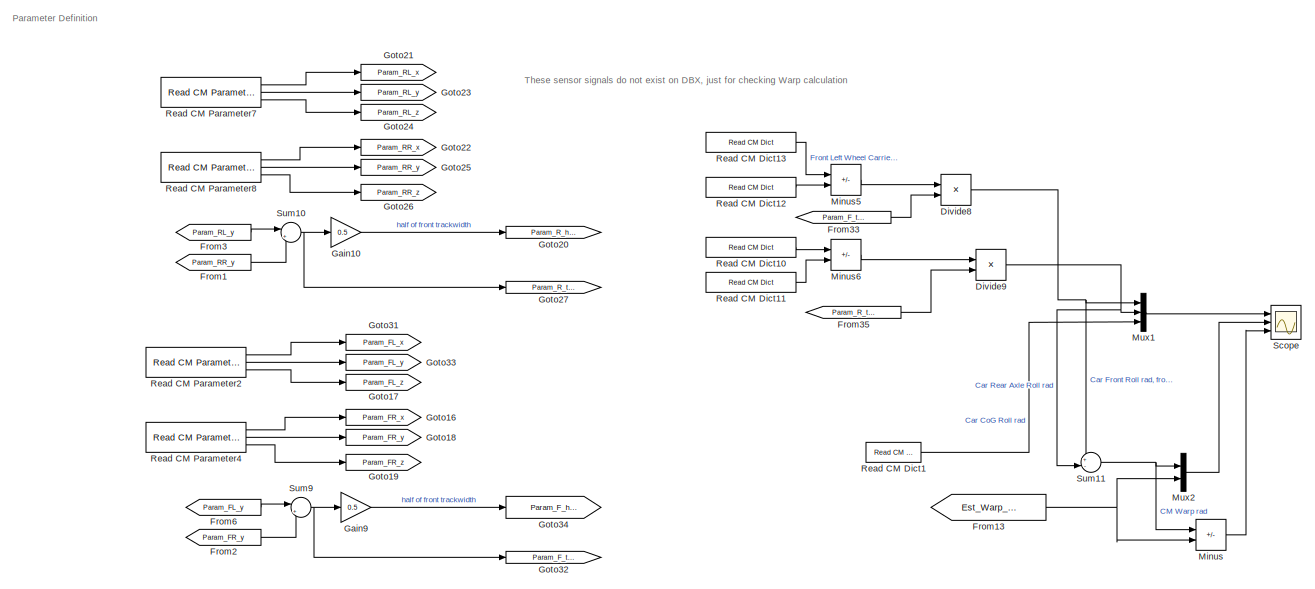
[diagram: root canvas - part 1/5, top left region]
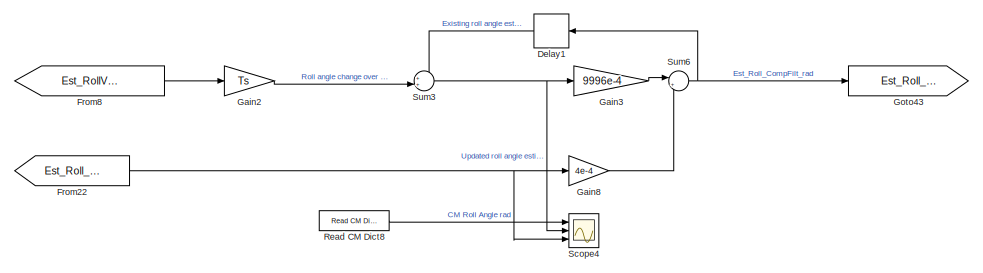
[diagram: root canvas - part 2/5, middle right region]
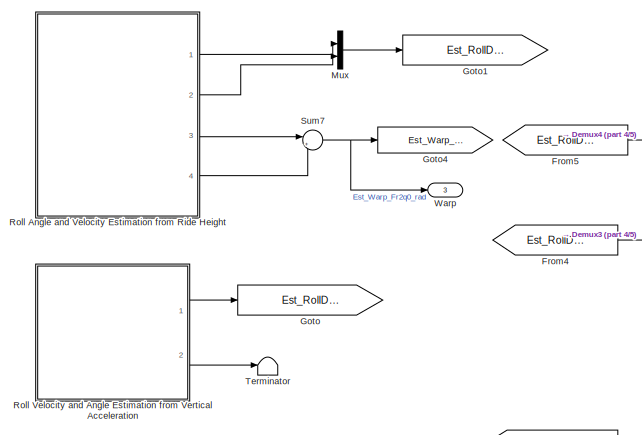
[diagram: root canvas - part 3/5, middle left region]
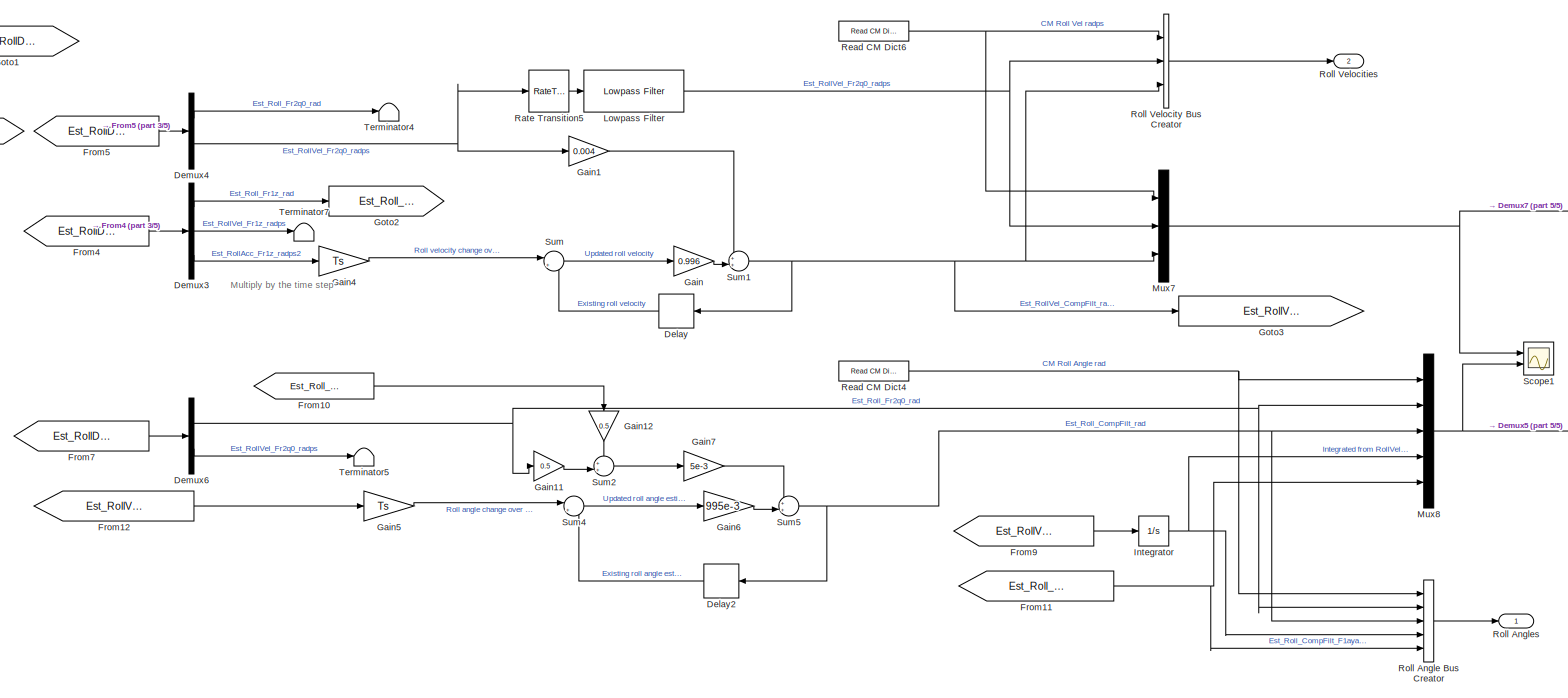
[diagram: root canvas - part 4/5, bottom center region]
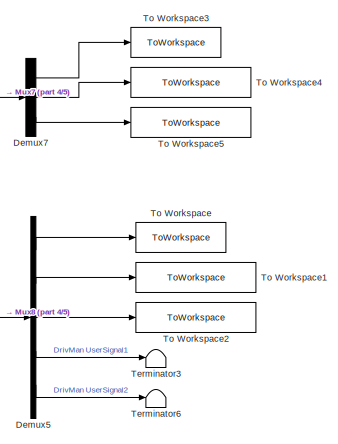
[diagram: root canvas - part 5/5, bottom right region]
MODEL slx_1d5358921027
KIND model
CONFIG AbsTol = auto
CONFIG EnableMultiTasking = on
CONFIG FixedStep = auto
CONFIG MaxStep = auto
CONFIG MinStep = auto
CONFIG RelTol = 1e-3
CONFIG SampleTimeConstraint = Unconstrained
CONFIG SolverName = FixedStepAuto
CONFIG StartTime = 0.0
CONFIG StopTime = 10.0
BLOCK [Delay] Delay
  DelayLength = 1
  InputPortMap = u0
  NameLocation = top
  Ports = [1, 1]
BLOCK [Delay] Delay1
  DelayLength = 1
  InputPortMap = u0
  NameLocation = top
  Ports = [1, 1]
BLOCK [Delay] Delay2
  DelayLength = 1
  InputPortMap = u0
  NameLocation = top
  Ports = [1, 1]
BLOCK [Demux] Demux3
  DisplayOption = none
  Outputs = 3
  Ports = [1, 3]
BLOCK [Demux] Demux4
  DisplayOption = none
  Outputs = 2
  Ports = [1, 2]
BLOCK [Demux] Demux5
  DisplayOption = none
  Outputs = 5
  Ports = [1, 5]
BLOCK [Demux] Demux6
  DisplayOption = none
  Outputs = 2
  Ports = [1, 2]
BLOCK [Demux] Demux7
  Outputs = 3
  Ports = [1, 3]
BLOCK [Product] Divide8
  Inputs = */
  Ports = [2, 1]
BLOCK [Product] Divide9
  Inputs = */
  Ports = [2, 1]
BLOCK [From] From1
  GotoTag = Param_RR_y
BLOCK [From] From10
  GotoTag = Est_Roll_Fr1ayaz_rad
BLOCK [From] From11
  GotoTag = Est_Roll_CompFilt_rad
BLOCK [From] From12
  GotoTag = Est_RollVel_CompFilt_radps
BLOCK [From] From13
  GotoTag = Est_Warp_Fr2q0_rad
BLOCK [From] From2
  GotoTag = Param_FR_y
BLOCK [From] From22
  GotoTag = Est_Roll_Fr1ayaz_rad
BLOCK [From] From3
  GotoTag = Param_RL_y
BLOCK [From] From33
  GotoTag = Param_F_track
BLOCK [From] From35
  GotoTag = Param_R_track
BLOCK [From] From4
  GotoTag = Est_RollDynamics_Fr1z
BLOCK [From] From5
  GotoTag = Est_RollDynamics_Fr2q0
BLOCK [From] From6
  GotoTag = Param_FL_y
BLOCK [From] From7
  GotoTag = Est_RollDynamics_Fr2q0
BLOCK [From] From8
  GotoTag = Est_RollVel_CompFilt_radps
BLOCK [From] From9
  GotoTag = Est_RollVel_CompFilt_radps
BLOCK [Gain] Gain
  Gain = 0.996
BLOCK [Gain] Gain1
  Gain = 0.004
BLOCK [Gain] Gain10
  Gain = 0.5
BLOCK [Gain] Gain11
  Gain = 0.5
BLOCK [Gain] Gain12
  Gain = 0.5
  NameLocation = left
BLOCK [Gain] Gain2
  Gain = Ts
BLOCK [Gain] Gain3
  Gain = 9996e-4
BLOCK [Gain] Gain4
  Gain = Ts
BLOCK [Gain] Gain5
  Gain = Ts
BLOCK [Gain] Gain6
  Gain = 995e-3
BLOCK [Gain] Gain7
  Gain = 5e-3
BLOCK [Gain] Gain8
  Gain = 4e-4
BLOCK [Gain] Gain9
  Gain = 0.5
BLOCK [Goto] Goto
  GotoTag = Est_RollDynamics_Fr1z
BLOCK [Goto] Goto1
  GotoTag = Est_RollDynamics_Fr2q0
BLOCK [Goto] Goto16
  GotoTag = Param_FR_x
BLOCK [Goto] Goto17
  GotoTag = Param_FL_z
BLOCK [Goto] Goto18
  GotoTag = Param_FR_y
BLOCK [Goto] Goto19
  GotoTag = Param_FR_z
BLOCK [Goto] Goto2
  GotoTag = Est_Roll_Fr1ayaz_rad
BLOCK [Goto] Goto20
  GotoTag = Param_R_halftrack
BLOCK [Goto] Goto21
  GotoTag = Param_RL_x
BLOCK [Goto] Goto22
  GotoTag = Param_RR_x
BLOCK [Goto] Goto23
  GotoTag = Param_RL_y
BLOCK [Goto] Goto24
  GotoTag = Param_RL_z
BLOCK [Goto] Goto25
  GotoTag = Param_RR_y
BLOCK [Goto] Goto26
  GotoTag = Param_RR_z
BLOCK [Goto] Goto27
  GotoTag = Param_R_track
BLOCK [Goto] Goto3
  GotoTag = Est_RollVel_CompFilt_radps
BLOCK [Goto] Goto31
  GotoTag = Param_FL_x
BLOCK [Goto] Goto32
  GotoTag = Param_F_track
BLOCK [Goto] Goto33
  GotoTag = Param_FL_y
BLOCK [Goto] Goto34
  GotoTag = Param_F_halftrack
BLOCK [Goto] Goto4
  GotoTag = Est_Warp_Fr2q0_rad
BLOCK [Goto] Goto43
  GotoTag = Est_Roll_CompFilt_rad
BLOCK [Integrator] Integrator
  Ports = [1, 1]
BLOCK [Reference] Lowpass Filter  REF=dspfdesign/Lowpass Filter
  Ports = [1, 1]
  SourceBlock = dspfdesign/Lowpass Filter
  SourceProductBaseCode = DS
  SourceType = dsp.LowpassFilter
BLOCK [Sum] Minus
  IconShape = rectangular
  Inputs = +-
  Ports = [2, 1]
BLOCK [Sum] Minus5
  IconShape = rectangular
  Inputs = -+
  Ports = [2, 1]
BLOCK [Sum] Minus6
  IconShape = rectangular
  Inputs = -+
  Ports = [2, 1]
BLOCK [Mux] Mux
  DisplayOption = bar
  Inputs = 2
  Ports = [2, 1]
BLOCK [Mux] Mux1
  DisplayOption = bar
  Inputs = 3
  Ports = [3, 1]
BLOCK [Mux] Mux2
  DisplayOption = bar
  Inputs = 2
  Ports = [2, 1]
BLOCK [Mux] Mux7
  DisplayOption = bar
  Inputs = 3
  Ports = [3, 1]
BLOCK [Mux] Mux8
  DisplayOption = bar
  Inputs = 5
  Ports = [5, 1]
BLOCK [RateTransition] Rate Transition5
BLOCK [Reference] Read CM Dict1  REF=CarMaker4SL/Read CM Dict
  Ports = [0, 1]
  SourceBlock = CarMaker4SL/Read CM Dict
  SourceProductName = CarMaker4SL
  SourceType = Read CarMaker Dictionary Variable(s)
BLOCK [Reference] Read CM Dict10  REF=CarMaker4SL/Read CM Dict
  Ports = [0, 1]
  SourceBlock = CarMaker4SL/Read CM Dict
  SourceProductName = CarMaker4SL
  SourceType = Read CarMaker Dictionary Variable(s)
BLOCK [Reference] Read CM Dict11  REF=CarMaker4SL/Read CM Dict
  Ports = [0, 1]
  SourceBlock = CarMaker4SL/Read CM Dict
  SourceProductName = CarMaker4SL
  SourceType = Read CarMaker Dictionary Variable(s)
BLOCK [Reference] Read CM Dict12  REF=CarMaker4SL/Read CM Dict
  Ports = [0, 1]
  SourceBlock = CarMaker4SL/Read CM Dict
  SourceProductName = CarMaker4SL
  SourceType = Read CarMaker Dictionary Variable(s)
BLOCK [Reference] Read CM Dict13  REF=CarMaker4SL/Read CM Dict
  Ports = [0, 1]
  SourceBlock = CarMaker4SL/Read CM Dict
  SourceProductName = CarMaker4SL
  SourceType = Read CarMaker Dictionary Variable(s)
BLOCK [Reference] Read CM Dict4  REF=CarMaker4SL/Read CM Dict
  Ports = [0, 1]
  SourceBlock = CarMaker4SL/Read CM Dict
  SourceProductName = CarMaker4SL
  SourceType = Read CarMaker Dictionary Variable(s)
BLOCK [Reference] Read CM Dict6  REF=CarMaker4SL/Read CM Dict
  Ports = [0, 1]
  SourceBlock = CarMaker4SL/Read CM Dict
  SourceProductName = CarMaker4SL
  SourceType = Read CarMaker Dictionary Variable(s)
BLOCK [Reference] Read CM Dict8  REF=CarMaker4SL/Read CM Dict
  Ports = [0, 1]
  SourceBlock = CarMaker4SL/Read CM Dict
  SourceProductName = CarMaker4SL
  SourceType = Read CarMaker Dictionary Variable(s)
BLOCK [Reference] Read CM Parameter2  REF=CarMaker4SL/Read CM Parameter
  Ports = [0, 3]
  SourceBlock = CarMaker4SL/Read CM Parameter
  SourceProductName = CarMaker4SL
  SourceType = Read CarMaker Infofile Parameter
BLOCK [Reference] Read CM Parameter4  REF=CarMaker4SL/Read CM Parameter
  Ports = [0, 3]
  SourceBlock = CarMaker4SL/Read CM Parameter
  SourceProductName = CarMaker4SL
  SourceType = Read CarMaker Infofile Parameter
BLOCK [Reference] Read CM Parameter7  REF=CarMaker4SL/Read CM Parameter
  Ports = [0, 3]
  SourceBlock = CarMaker4SL/Read CM Parameter
  SourceProductName = CarMaker4SL
  SourceType = Read CarMaker Infofile Parameter
BLOCK [Reference] Read CM Parameter8  REF=CarMaker4SL/Read CM Parameter
  Ports = [0, 3]
  SourceBlock = CarMaker4SL/Read CM Parameter
  SourceProductName = CarMaker4SL
  SourceType = Read CarMaker Infofile Parameter
BLOCK [BusCreator] Roll Angle Bus Creator
  DisplayOption = bar
  InheritFromInputs = on
  Inputs = 5
  OutDataTypeStr = Bus: Est_Roll_CF
  Ports = [5, 1]
BLOCK [ModelReference] Roll Angle and Velocity Estimation from Ride Height
  ModelNameDialog = s0501_rollest_rideheight.slx
  ModelReferenceVersion = 1.15
  Ports = [0, 4]
BLOCK [Outport] Roll Angles
  OutDataTypeStr = Bus: Est_Roll_CF
BLOCK [Outport] Roll Velocities
  OutDataTypeStr = Bus: Est_RollVel_CF
  Port = 2
BLOCK [BusCreator] Roll Velocity Bus Creator
  DisplayOption = bar
  InheritFromInputs = on
  Inputs = 3
  OutDataTypeStr = Bus: Est_RollVel_CF
  Ports = [3, 1]
BLOCK [ModelReference] Roll Velocity and Angle Estimation from Vertical Acceleration
  ModelNameDialog = s0502_rollest_vertacc.slx
  ModelReferenceVersion = 1.21
  Ports = [0, 2]
BLOCK [Scope] Scope
  Floating = off
  NumInputPorts = 3
  Ports = [3]
  ScopeSpecificationString = Simulink.scopes.TimeScopeBlockCfg('CurrentConfiguration', extmgr.ConfigurationSet(extmgr.Configuration('Core','General UI',true),extmgr.Configuration('Core','Source UI',true),extmgr.Configuration('Sources','WiredSimulink',true,'DataLoggingVariableName','ScopeData1'),extmgr.Configuration('Visuals','Time Domain',true,'SerializedDisplays',{struct('MinYLimReal','-0.00942','MaxYLimReal','0.08423','YLab...<+2922ch>
BLOCK [Scope] Scope1
  Commented = on
  Floating = off
  NumInputPorts = 2
  Ports = [2]
  ScopeSpecificationString = Simulink.scopes.TimeScopeBlockCfg('CurrentConfiguration', extmgr.ConfigurationSet(extmgr.Configuration('Core','General UI',true),extmgr.Configuration('Core','Source UI',true),extmgr.Configuration('Sources','WiredSimulink',true,'DataLoggingVariableName','ScopeData2'),extmgr.Configuration('Visuals','Time Domain',true,'SerializedDisplays',{struct('MinYLimReal','-0.11617','MaxYLimReal','0.26206','YLab...<+2181ch>
BLOCK [Scope] Scope4
  Floating = off
  NumInputPorts = 3
  Ports = [3]
  ScopeSpecificationString = Simulink.scopes.TimeScopeBlockCfg('CurrentConfiguration', extmgr.ConfigurationSet(extmgr.Configuration('Core','General UI',true),extmgr.Configuration('Core','Source UI',true),extmgr.Configuration('Sources','WiredSimulink',true,'DataLoggingVariableName','ScopeData2'),extmgr.Configuration('Visuals','Time Domain',true,'SerializedDisplays',{struct('MinYLimReal','-0.00941','MaxYLimReal','0.08306','YLab...<+1506ch>
BLOCK [Sum] Sum
  Inputs = |++
  Ports = [2, 1]
BLOCK [Sum] Sum1
  Inputs = ++|
  Ports = [2, 1]
BLOCK [Sum] Sum10
  Inputs = |+-
  Ports = [2, 1]
BLOCK [Sum] Sum11
  Inputs = +-|
  Ports = [2, 1]
BLOCK [Sum] Sum2
  Inputs = ++|
  Ports = [2, 1]
BLOCK [Sum] Sum3
  Inputs = ++|
  Ports = [2, 1]
BLOCK [Sum] Sum4
  Inputs = |++
  Ports = [2, 1]
BLOCK [Sum] Sum5
  Inputs = ++|
  Ports = [2, 1]
BLOCK [Sum] Sum6
  Inputs = |++
  Ports = [2, 1]
BLOCK [Sum] Sum7
  Inputs = |+-
  Ports = [2, 1]
BLOCK [Sum] Sum9
  Inputs = |+-
  Ports = [2, 1]
BLOCK [Terminator] Terminator
BLOCK [Terminator] Terminator3
  Commented = on
BLOCK [Terminator] Terminator4
BLOCK [Terminator] Terminator5
BLOCK [Terminator] Terminator6
  Commented = on
BLOCK [Terminator] Terminator7
  NameLocation = right
BLOCK [ToWorkspace] To Workspace
  Commented = on
  FixptAsFi = on
  MaxDataPoints = inf
  Ports = [1]
  SampleTime = -1
  VariableName = Car_Roll_rad
BLOCK [ToWorkspace] To Workspace1
  Commented = on
  FixptAsFi = on
  MaxDataPoints = inf
  Ports = [1]
  SampleTime = -1
  VariableName = Est_Roll_Fr2q0_rad
BLOCK [ToWorkspace] To Workspace2
  Commented = on
  FixptAsFi = on
  MaxDataPoints = inf
  Ports = [1]
  SampleTime = -1
  VariableName = Est_Roll_CompFilt_rad
BLOCK [ToWorkspace] To Workspace3
  Commented = on
  FixptAsFi = on
  MaxDataPoints = inf
  Ports = [1]
  SampleTime = -1
  VariableName = Car_RollVel_radps
BLOCK [ToWorkspace] To Workspace4
  Commented = on
  FixptAsFi = on
  MaxDataPoints = inf
  Ports = [1]
  SampleTime = -1
  VariableName = Est_RollVel_Fr2q0_radps
BLOCK [ToWorkspace] To Workspace5
  Commented = on
  FixptAsFi = on
  MaxDataPoints = inf
  Ports = [1]
  SampleTime = -1
  VariableName = Est_RollVel_CompFilt_radps
BLOCK [Outport] Warp
  Port = 3
ANNOTATION (root): Multiply by the time step
ANNOTATION (root): Parameter Definition
ANNOTATION (root): These sensor signals do not exist on DBX, just for checking Warp calculation
LINE Delay1:1 -> Sum3:1
LINE Delay2:1 -> Sum4:2
LINE Delay:1 -> Sum:2
LINE Demux3:1 -> Goto2:1
LINE Demux3:2 -> Terminator7:1
LINE Demux3:3 -> Gain4:1
LINE Demux4:1 -> Terminator4:1
NET Demux4:2 -> Gain1:1, Rate Transition5:1
LINE Demux5:1 -> To Workspace:1
LINE Demux5:2 -> To Workspace1:1
LINE Demux5:3 -> To Workspace2:1
LINE Demux5:4 -> Terminator3:1
LINE Demux5:5 -> Terminator6:1
NET Demux6:1 -> Gain11:1, Mux8:2, Roll Angle Bus Creator:2
LINE Demux6:2 -> Terminator5:1
LINE Demux7:1 -> To Workspace3:1
LINE Demux7:2 -> To Workspace4:1
LINE Demux7:3 -> To Workspace5:1
NET Divide8:1 -> Mux1:1, Sum11:1
NET Divide9:1 -> Mux1:2, Sum11:2
LINE From10:1 -> Gain12:1
NET From11:1 -> Mux8:5, Roll Angle Bus Creator:5
LINE From12:1 -> Gain5:1
NET From13:1 -> Minus:2, Mux2:2
LINE From1:1 -> Sum10:2
NET From22:1 -> Gain8:1, Scope4:3
LINE From2:1 -> Sum9:2
LINE From33:1 -> Divide8:2
LINE From35:1 -> Divide9:2
LINE From3:1 -> Sum10:1
LINE From4:1 -> Demux3:1
LINE From5:1 -> Demux4:1
LINE From6:1 -> Sum9:1
LINE From7:1 -> Demux6:1
LINE From8:1 -> Gain2:1
LINE From9:1 -> Integrator:1
LINE Gain10:1 -> Goto20:1
LINE Gain11:1 -> Sum2:2
LINE Gain12:1 -> Sum2:1
LINE Gain1:1 -> Sum1:1
LINE Gain2:1 -> Sum3:2
LINE Gain3:1 -> Sum6:1
LINE Gain4:1 -> Sum:1
LINE Gain5:1 -> Sum4:1
LINE Gain6:1 -> Sum5:2
LINE Gain7:1 -> Sum5:1
LINE Gain8:1 -> Sum6:2
LINE Gain9:1 -> Goto34:1
LINE Gain:1 -> Sum1:2
NET Integrator:1 -> Mux8:4, Roll Angle Bus Creator:4
NET Lowpass Filter:1 -> Mux7:2, Roll Velocity Bus Creator:2
LINE Minus5:1 -> Divide8:1
LINE Minus6:1 -> Divide9:1
LINE Minus:1 -> Scope:3
LINE Mux1:1 -> Scope:1
LINE Mux2:1 -> Scope:2
NET Mux7:1 -> Demux7:1, Scope1:1
NET Mux8:1 -> Demux5:1, Scope1:2
LINE Mux:1 -> Goto1:1
LINE Rate Transition5:1 -> Lowpass Filter:1
LINE Read CM Dict10:1 -> Minus6:1
LINE Read CM Dict11:1 -> Minus6:2
LINE Read CM Dict12:1 -> Minus5:2
LINE Read CM Dict13:1 -> Minus5:1
LINE Read CM Dict1:1 -> Mux1:3
NET Read CM Dict4:1 -> Mux8:1, Roll Angle Bus Creator:1
NET Read CM Dict6:1 -> Mux7:1, Roll Velocity Bus Creator:1
LINE Read CM Dict8:1 -> Scope4:1
LINE Read CM Parameter2:1 -> Goto31:1
LINE Read CM Parameter2:2 -> Goto33:1
LINE Read CM Parameter2:3 -> Goto17:1
LINE Read CM Parameter4:1 -> Goto16:1
LINE Read CM Parameter4:2 -> Goto18:1
LINE Read CM Parameter4:3 -> Goto19:1
LINE Read CM Parameter7:1 -> Goto21:1
LINE Read CM Parameter7:2 -> Goto23:1
LINE Read CM Parameter7:3 -> Goto24:1
LINE Read CM Parameter8:1 -> Goto22:1
LINE Read CM Parameter8:2 -> Goto25:1
LINE Read CM Parameter8:3 -> Goto26:1
LINE Roll Angle Bus Creator:1 -> Roll Angles:1
LINE Roll Angle and Velocity Estimation from Ride Height:1 -> Mux:1
LINE Roll Angle and Velocity Estimation from Ride Height:2 -> Mux:2
LINE Roll Angle and Velocity Estimation from Ride Height:3 -> Sum7:1
LINE Roll Angle and Velocity Estimation from Ride Height:4 -> Sum7:2
LINE Roll Velocity Bus Creator:1 -> Roll Velocities:1
LINE Roll Velocity and Angle Estimation from Vertical Acceleration:1 -> Goto:1
LINE Roll Velocity and Angle Estimation from Vertical Acceleration:2 -> Terminator:1
NET Sum10:1 -> Gain10:1, Goto27:1
NET Sum11:1 -> Minus:1, Mux2:1
NET Sum1:1 -> Delay:1, Goto3:1, Mux7:3, Roll Velocity Bus Creator:3
LINE Sum2:1 -> Gain7:1
NET Sum3:1 -> Gain3:1, Scope4:2
LINE Sum4:1 -> Gain6:1
NET Sum5:1 -> Delay2:1, Mux8:3, Roll Angle Bus Creator:3
NET Sum6:1 -> Delay1:1, Goto43:1
NET Sum7:1 -> Goto4:1, Warp:1
NET Sum9:1 -> Gain9:1, Goto32:1
LINE Sum:1 -> Gain:1
note: NET lines group one-source signal fan-out (src -> all destinations, sorted); 1:1 wires keep LINE
